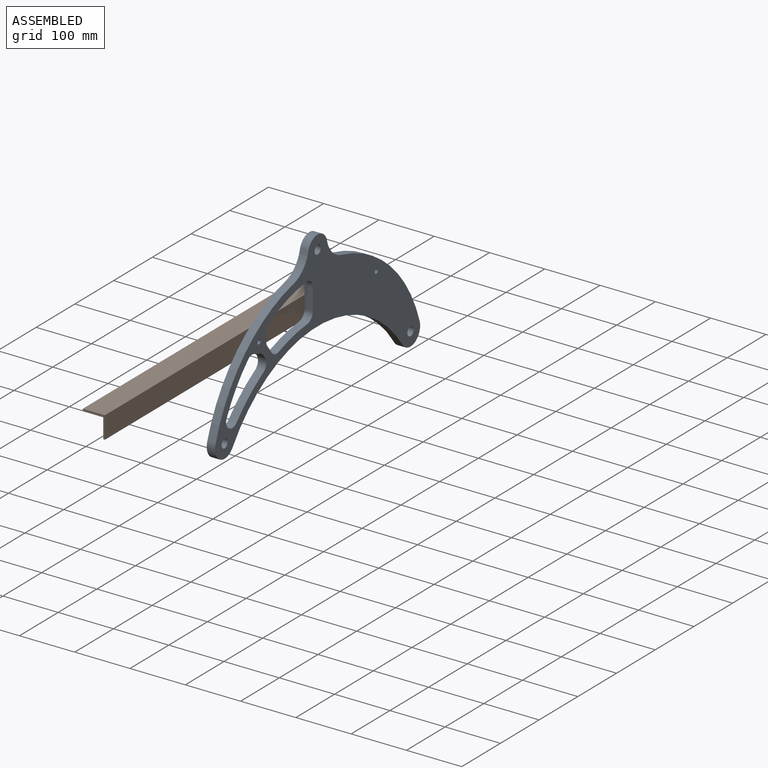
[diagram: assembled view]
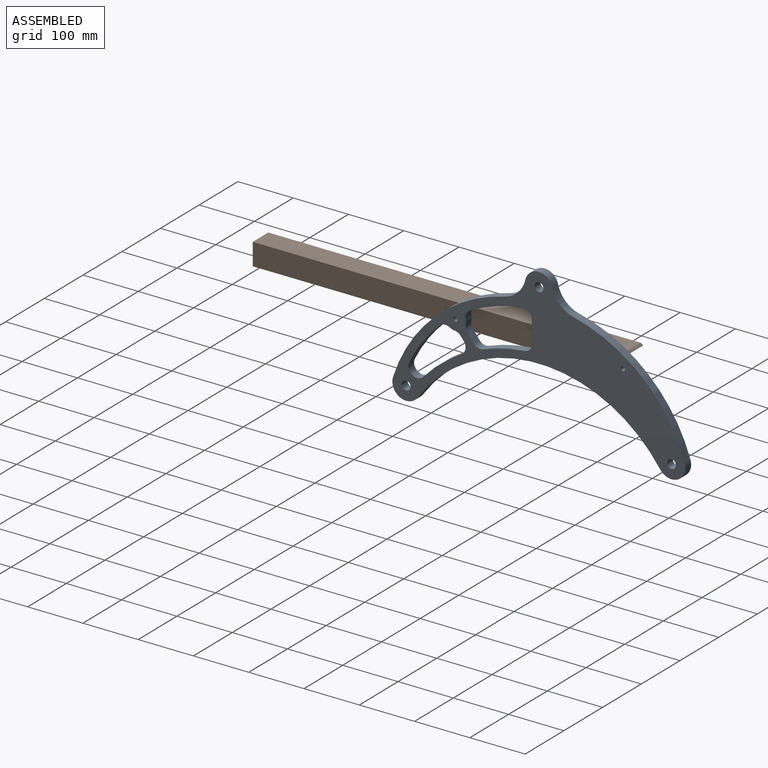
[diagram: assembled view, second angle]
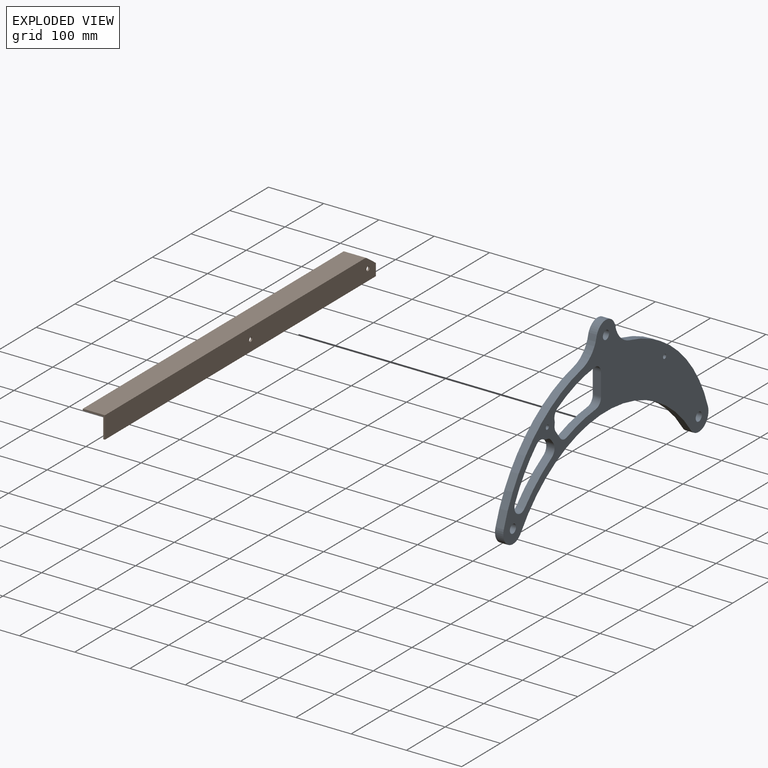
[diagram: exploded view]
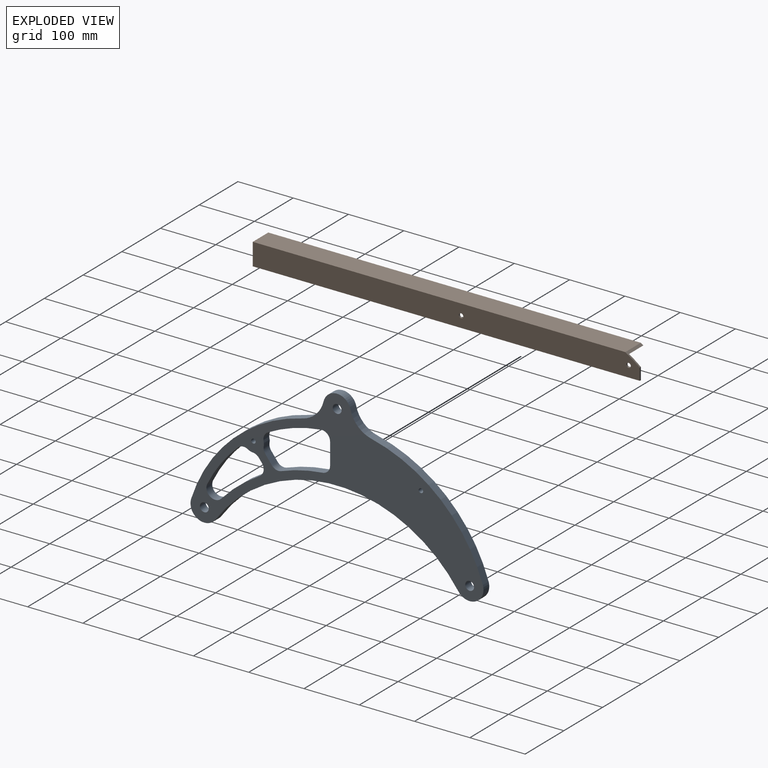
[diagram: exploded view, second angle]
ASSEMBLY  parts=2 mates=2
PART A: 35 faces, bbox 15x530x275 mm
  f0: cylinder r=262.07mm len=74.39mm, axis (1,0,0), area 1398.2mm2, adj f1,f26,f30,f31
  f1: cylinder r=15mm len=18.13mm, axis (-1,0,0), area 293.8mm2, adj f0,f2,f30,f31
  f2: cylinder r=19mm len=15mm, axis (-1,0,0), area 140.5mm2, adj f1,f3,f30,f31
  f3: cylinder r=15mm len=15mm, axis (-1,0,0), area 192.9mm2, adj f2,f4,f30,f31
  f4: plane 15x7.29mm, normal (0,-0.79,-0.61), area 137.7mm2, adj f3,f30,f31,f32
  f5: cylinder r=282.9mm len=69.12mm, axis (-1,0,0), area 1334mm2, adj f6,f30,f31,f32
  f6: cylinder r=15mm len=18.84mm, axis (1,0,0), area 309.4mm2, adj f5,f7,f30,f31
  f7: cylinder r=23mm len=15mm, axis (-1,0,0), area 8.5mm2, adj f6,f26,f30,f31
  f8: cylinder r=15mm len=15mm, axis (-1,0,0), area 188.5mm2, adj f9,f27,f30,f31
  f9: cylinder r=19mm len=15mm, axis (-1,0,0), area 118.9mm2, adj f8,f10,f30,f31
  f10: cylinder r=15mm len=16.64mm, axis (-1,0,0), area 293.8mm2, adj f9,f11,f30,f31
  f11: cylinder r=262.07mm len=96.09mm, axis (1,0,0), area 1520.5mm2, adj f10,f12,f30,f31
  f12: cylinder r=15mm len=16.67mm, axis (1,0,0), area 378.5mm2, adj f11,f13,f30,f31
  f13: plane 39.74x15mm, normal (0,-1,0), area 596.1mm2, adj f12,f14,f30,f31
  f14: cylinder r=15mm len=15mm, axis (-1,0,0), area 332.6mm2, adj f13,f15,f30,f31
  f15: cylinder r=282.9mm len=74.51mm, axis (-1,0,0), area 1150.9mm2, adj f14,f16,f30,f31
  f16: cylinder r=15mm len=17.24mm, axis (-1,0,0), area 288.1mm2, adj f15,f27,f30,f31
  f17: cylinder r=25mm len=48.67mm, axis (-1,0,0), area 1004.6mm2, adj f30,f31,f33,f34
  f18: cylinder r=277.07mm len=201.46mm, axis (-1,0,0), area 4293.8mm2, adj f19,f30,f31,f33
  f19: cylinder r=25mm len=45.49mm, axis (-1,0,0), area 1065.7mm2, adj f18,f20,f30,f31
  f20: cylinder r=267.9mm len=439.03mm, axis (-1,0,0), area 7718.3mm2, adj f19,f21,f30,f31
  f21: cylinder r=25mm len=45.49mm, axis (-1,0,0), area 1065.7mm2, adj f20,f28,f30,f31
  f22: cylinder r=8mm len=16mm, axis (-1,0,0), area 754mm2, adj f30,f31
  f23: cylinder r=8mm len=16mm, axis (-1,0,0), area 754mm2, adj f30,f31
  f24: cylinder r=8mm len=16mm, axis (-1,0,0), area 754mm2, adj f30,f31
  f25: cylinder r=4mm len=15mm, axis (-1,0,0), area 377mm2, adj f30,f31
  f26: cylinder r=15mm len=19.72mm, axis (-1,0,0), area 340.8mm2, adj f0,f7,f30,f31
  f27: plane 15.36x15mm, normal (0,0.79,0.61), area 290.4mm2, adj f8,f16,f30,f31
  f28: cylinder r=277.07mm len=201.46mm, axis (-1,0,0), area 4293.8mm2, adj f21,f30,f31,f34
  f29: cylinder r=4mm len=15mm, axis (-1,0,0), area 377mm2, adj f30,f31
  f30: plane 530x275mm, normal (1,0,0), area 40797.8mm2, adj f0,f1,f2,f3,f4,f5,f6,f7
  f31: plane 530x275mm, normal (-1,0,0), area 40797.8mm2, adj f0,f1,f2,f3,f4,f5,f6,f7
  f32: cylinder r=15mm len=22.15mm, axis (-1,0,0), area 383.9mm2, adj f4,f5,f30,f31
  f33: cylinder r=50.79mm len=38.01mm, axis (1,0,0), area 847.5mm2, adj f17,f18,f30,f31
  f34: cylinder r=50.79mm len=38.01mm, axis (1,0,0), area 847.5mm2, adj f17,f28,f30,f31
PART B: 11 faces, bbox 40x700x40 mm
  f0: plane 700x37mm, normal (-1,0,0), area 25640.4mm2, adj f1,f2,f3,f5,f6,f7,f9
  f1: plane 700x3mm, normal (0,0,-1), area 2100mm2, adj f0,f2,f6,f8
  f2: plane 21.52x3mm, normal (0,1,0), area 64.6mm2, adj f0,f1,f3,f8
  f3: cylinder r=260.67mm len=40mm, axis (1,0,0), area 302.5mm2, adj f0,f2,f4,f8,f9,f10
  f4: plane 673.98x40mm, normal (0,0,1), area 26959mm2, adj f3,f6,f8,f10
  f5: cylinder r=4mm len=8mm, axis (1,0,0), area 75.4mm2, adj f0,f8
  f6: plane 40x40mm, normal (0,-1,0), area 231mm2, adj f0,f1,f4,f8,f9,f10
  f7: cylinder r=4mm len=8mm, axis (1,0,0), area 75.4mm2, adj f0,f8
  f8: plane 700x40mm, normal (1,0,0), area 27669.4mm2, adj f1,f2,f3,f4,f5,f6,f7
  f9: plane 678.69x37mm, normal (0,0,-1), area 25111.5mm2, adj f0,f3,f6,f10
  f10: plane 678.69x3mm, normal (-1,0,0), area 2029.1mm2, adj f3,f4,f6,f9
PLACE A t=(-6.35,0.7,-110.35)mm
PLACE B t=(-6.35,-2.65,-51.63)mm
MATE planar B.f8 <-> A.f31  axis (1,0,0) through (-6.35,-180.81,21.63)mm
MATE cylindrical B.f7 <-> A.f29  axis (1,0,0) through (-6.35,152.48,21.75)mm
